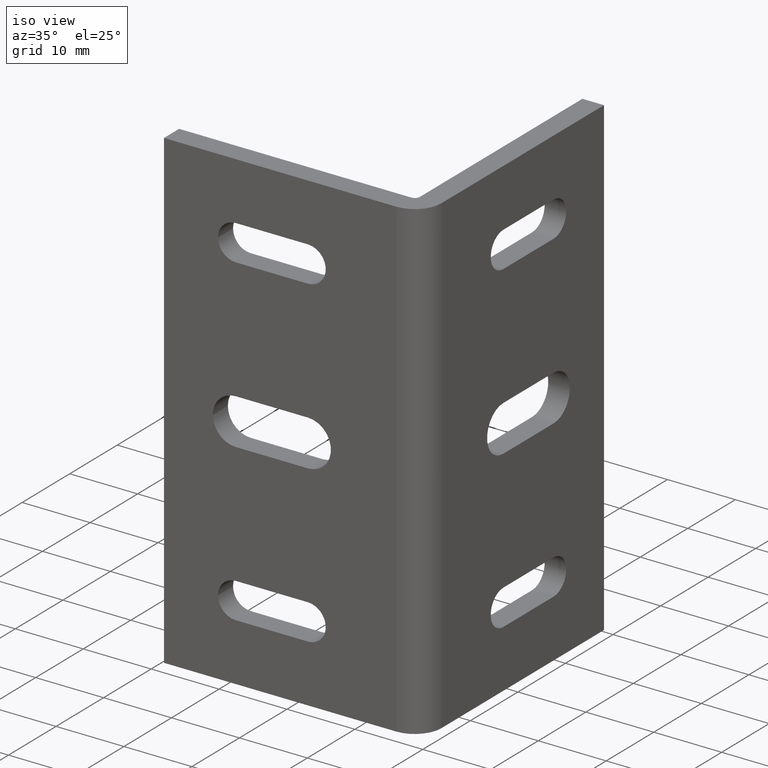
[diagram: clean part render]
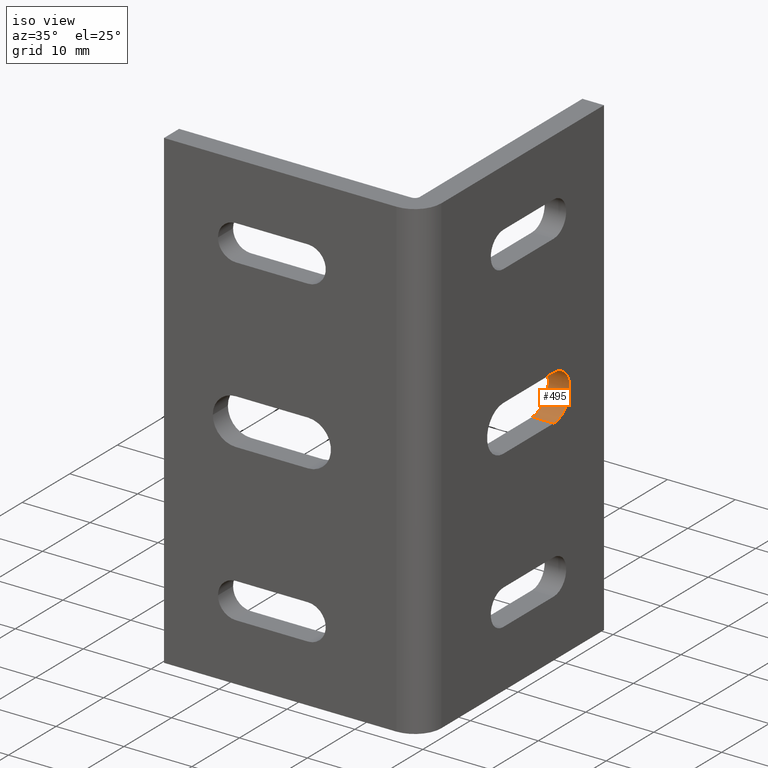
[diagram: same view with one face highlighted and labeled with its STEP entity id]
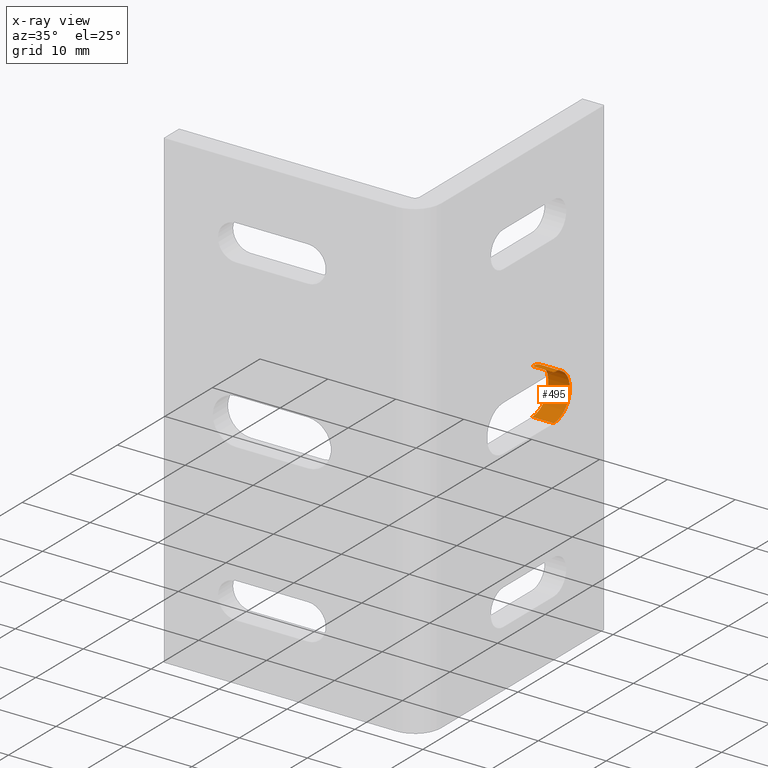
[diagram: x-ray of the same camera — body ghosted, the highlighted face saturated]
A machine part, iso view. The second image highlights one B-rep face of the part: STEP entity #495.
The next image is the same camera in x-ray: the body ghosted, the highlighted face saturated — about 0% of this face is hidden behind the body in this view.
In plain terms, the highlighted cylindrical surface (edge-blend (fillet) strip) has radius 3.3782 mm, axis along (-1, 0, 0).
Its self-contained STEP definition (entity closure, byte-faithful):
#2 = ORIENTED_EDGE ( 'NONE', *, *, #561, .T. ) ;
#52 = ORIENTED_EDGE ( 'NONE', *, *, #566, .F. ) ;
#59 = ORIENTED_EDGE ( 'NONE', *, *, #589, .T. ) ;
#102 = VERTEX_POINT ( 'NONE', #1018 ) ;
#227 = EDGE_LOOP ( 'NONE', ( #59, #2, #289, #52 ) ) ;
#289 = ORIENTED_EDGE ( 'NONE', *, *, #581, .F. ) ;
#319 = CIRCLE ( 'NONE', #1286, 0.1330000000000000100 ) ;
#332 = CIRCLE ( 'NONE', #1289, 0.1330000000000000100 ) ;
#495 = ADVANCED_FACE ( 'NONE', ( #871 ), #878, .F. ) ;
#561 = EDGE_CURVE ( 'NONE', #1082, #1084, #1356, .T. ) ;
#566 = EDGE_CURVE ( 'NONE', #1087, #102, #1363, .T. ) ;
#581 = EDGE_CURVE ( 'NONE', #102, #1084, #319, .T. ) ;
#589 = EDGE_CURVE ( 'NONE', #1087, #1082, #332, .T. ) ;
#701 = DIRECTION ( 'NONE',  ( 0.0000000000000000000, 0.0000000000000000000, 1.000000000000000000 ) ) ;
#705 = DIRECTION ( 'NONE',  ( -1.000000000000000000, 0.0000000000000000000, 0.0000000000000000000 ) ) ;
#748 = CARTESIAN_POINT ( 'NONE',  ( -0.1249999999999999900, 1.084500000000000200, 0.0000000000000000000 ) ) ;
#751 = CARTESIAN_POINT ( 'NONE',  ( -0.1249999999999999900, 1.084500000000000200, 0.1330000000000000100 ) ) ;
#753 = CARTESIAN_POINT ( 'NONE',  ( -0.1249999999999999900, 1.084500000000000200, -0.1329999999999998100 ) ) ;
#776 = DIRECTION ( 'NONE',  ( 0.0000000000000000000, 0.0000000000000000000, 1.000000000000000000 ) ) ;
#777 = CARTESIAN_POINT ( 'NONE',  ( 1.707404996040164500E-017, 1.084500000000000200, -0.1330000000000000100 ) ) ;
#778 = DIRECTION ( 'NONE',  ( -1.000000000000000000, 0.0000000000000000000, 0.0000000000000000000 ) ) ;
#871 = FACE_OUTER_BOUND ( 'NONE', #227, .T. ) ;
#878 = CYLINDRICAL_SURFACE ( 'NONE', #1265, 0.1330000000000000100 ) ;
#910 = VECTOR ( 'NONE', #941, 39.37007874015748100 ) ;
#941 = DIRECTION ( 'NONE',  ( 1.000000000000000000, -0.0000000000000000000, -0.0000000000000000000 ) ) ;
#948 = CARTESIAN_POINT ( 'NONE',  ( -0.1249999999999999900, 1.084500000000000200, 0.1330000000000000100 ) ) ;
#957 = DIRECTION ( 'NONE',  ( 1.000000000000000000, -0.0000000000000000000, -0.0000000000000000000 ) ) ;
#958 = CARTESIAN_POINT ( 'NONE',  ( -0.1249999999999999900, 1.084500000000000200, -0.1329999999999998100 ) ) ;
#972 = CARTESIAN_POINT ( 'NONE',  ( 1.707404996040164500E-017, 1.084500000000000200, 0.0000000000000000000 ) ) ;
#1018 = CARTESIAN_POINT ( 'NONE',  ( 1.707404996040164500E-017, 1.084500000000000200, 0.1329999999999999200 ) ) ;
#1082 = VERTEX_POINT ( 'NONE', #753 ) ;
#1084 = VERTEX_POINT ( 'NONE', #777 ) ;
#1087 = VERTEX_POINT ( 'NONE', #751 ) ;
#1153 = DIRECTION ( 'NONE',  ( -1.000000000000000000, 0.0000000000000000000, 0.0000000000000000000 ) ) ;
#1154 = DIRECTION ( 'NONE',  ( 0.0000000000000000000, 0.0000000000000000000, 1.000000000000000000 ) ) ;
#1156 = CARTESIAN_POINT ( 'NONE',  ( -0.1249999999999999900, 1.084500000000000200, 0.0000000000000000000 ) ) ;
#1265 = AXIS2_PLACEMENT_3D ( 'NONE', #1156, #1153, #1154 ) ;
#1286 = AXIS2_PLACEMENT_3D ( 'NONE', #972, #778, #776 ) ;
#1289 = AXIS2_PLACEMENT_3D ( 'NONE', #748, #705, #701 ) ;
#1350 = VECTOR ( 'NONE', #957, 39.37007874015748100 ) ;
#1356 = LINE ( 'NONE', #958, #1350 ) ;
#1363 = LINE ( 'NONE', #948, #910 ) ;